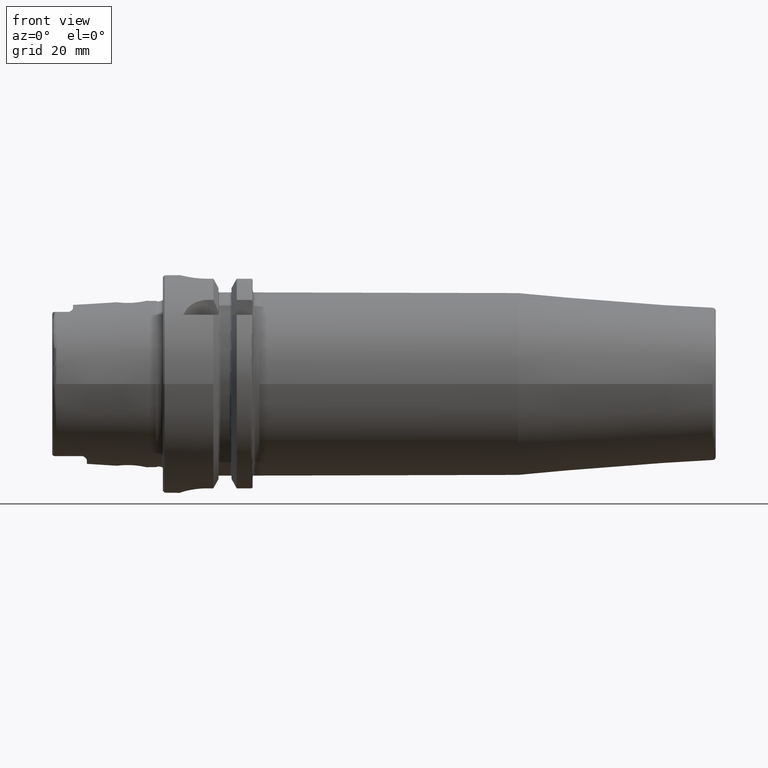
[diagram: clean part render]
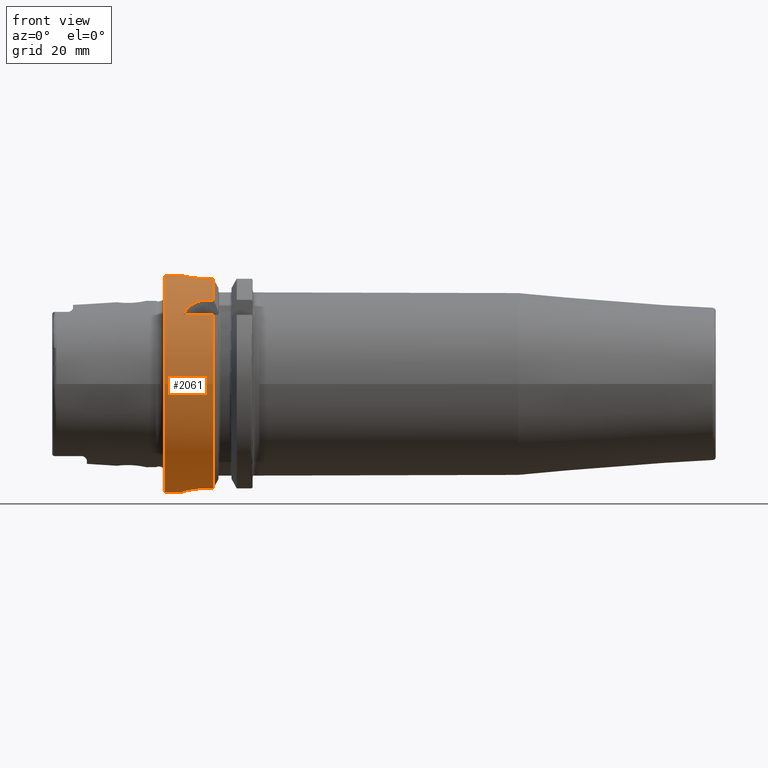
[diagram: same view with one face highlighted and labeled with its STEP entity id]
A machine part, front view. The second image highlights one B-rep face of the part: STEP entity #2061.
In plain terms, the highlighted cylindrical surface (bore or boss wall) has radius 31.5 mm, axis along (1, 0, 0).
Its self-contained STEP definition (entity closure, byte-faithful):
#75=B_SPLINE_CURVE_WITH_KNOTS('',3,(#3836,#3837,#3838,#3839,#3840,#3841,
#3842,#3843,#3844,#3845,#3846,#3847,#3848,#3849,#3850,#3851,#3852,#3853,
#3854,#3855,#3856,#3857,#3858,#3859,#3860,#3861),.UNSPECIFIED.,.F.,.F.,
(4,2,2,2,2,2,2,2,2,2,2,2,4),(0.,0.188688694287612,0.377377388575223,0.56606194688798,
0.754746505200737,0.943431063513494,1.13211562182625,1.32080431611386,1.50949301040147,
1.69818170468909,1.8868703989767,2.07555495728945,2.26423951560221),
 .UNSPECIFIED.);
#76=B_SPLINE_CURVE_WITH_KNOTS('',3,(#3862,#3863,#3864,#3865,#3866,#3867,
#3868,#3869,#3870,#3871),.UNSPECIFIED.,.F.,.F.,(4,2,2,2,4),(2.26423951560221,
2.45292407391497,2.64160863222773,2.83029732651534,3.01898602080295),
 .UNSPECIFIED.);
#79=B_SPLINE_CURVE_WITH_KNOTS('',3,(#3928,#3929,#3930,#3931,#3932,#3933,
#3934,#3935,#3936,#3937,#3938,#3939),.UNSPECIFIED.,.F.,.F.,(4,2,2,2,2,4),
(1.1085154204615,1.31979218709236,1.52798350480179,1.73617482251122,1.90421770126337,
2.07226058001552),.UNSPECIFIED.);
#89=B_SPLINE_CURVE_WITH_KNOTS('',3,(#4108,#4109,#4110,#4111,#4112,#4113,
#4114,#4115,#4116,#4117),.UNSPECIFIED.,.F.,.F.,(4,2,2,2,4),(1.20927420824097,
1.5131742975437,1.81707438684643,2.12000449915965,2.42293461147287),
 .UNSPECIFIED.);
#92=B_SPLINE_CURVE_WITH_KNOTS('',3,(#4143,#4144,#4145,#4146,#4147,#4148,
#4149,#4150,#4151,#4152),.UNSPECIFIED.,.F.,.F.,(4,2,2,2,4),(0.,0.30293011231322,
0.605860224626439,0.90976031392917,1.2136604032319),.UNSPECIFIED.);
#102=B_SPLINE_CURVE_WITH_KNOTS('',3,(#4298,#4299,#4300,#4301,#4302,#4303,
#4304,#4305,#4306,#4307,#4308,#4309,#4310,#4311,#4312,#4313,#4314,#4315),
 .UNSPECIFIED.,.F.,.F.,(4,2,2,2,2,2,2,2,4),(0.,0.302805879979318,0.605611759958635,
0.908372461246501,1.21113316253437,1.51389386382223,1.8166545651101,2.11946044508942,
2.42226632506874),.UNSPECIFIED.);
#112=FACE_BOUND('',#422,.T.);
#207=CYLINDRICAL_SURFACE('',#2288,31.5);
#297=FACE_OUTER_BOUND('',#421,.T.);
#421=EDGE_LOOP('',(#1764,#1765,#1766,#1767,#1768,#1769,#1770,#1771,#1772,
#1773,#1774,#1775,#1776,#1777,#1778,#1779,#1780,#1781));
#422=EDGE_LOOP('',(#1782,#1783));
#514=LINE('',#3903,#618);
#519=LINE('',#3948,#623);
#537=LINE('',#4125,#641);
#538=LINE('',#4129,#642);
#550=LINE('',#4292,#654);
#553=LINE('',#4322,#657);
#555=LINE('',#4328,#659);
#618=VECTOR('',#2621,10.);
#623=VECTOR('',#2632,10.);
#641=VECTOR('',#2696,10.);
#642=VECTOR('',#2699,10.);
#654=VECTOR('',#2777,10.);
#657=VECTOR('',#2788,10.);
#659=VECTOR('',#2796,31.5);
#730=CIRCLE('',#2231,31.5);
#731=CIRCLE('',#2232,31.5);
#739=CIRCLE('',#2252,31.5);
#740=CIRCLE('',#2254,31.5);
#754=CIRCLE('',#2289,31.5);
#755=CIRCLE('',#2290,31.5);
#904=VERTEX_POINT('',#3833);
#905=VERTEX_POINT('',#3835);
#913=VERTEX_POINT('',#3900);
#914=VERTEX_POINT('',#3902);
#918=VERTEX_POINT('',#3927);
#920=VERTEX_POINT('',#3944);
#925=VERTEX_POINT('',#3960);
#926=VERTEX_POINT('',#3962);
#951=VERTEX_POINT('',#4106);
#952=VERTEX_POINT('',#4107);
#953=VERTEX_POINT('',#4127);
#954=VERTEX_POINT('',#4128);
#957=VERTEX_POINT('',#4142);
#958=VERTEX_POINT('',#4157);
#974=VERTEX_POINT('',#4289);
#975=VERTEX_POINT('',#4291);
#976=VERTEX_POINT('',#4297);
#978=VERTEX_POINT('',#4327);
#1147=EDGE_CURVE('',#905,#904,#75,.T.);
#1148=EDGE_CURVE('',#904,#905,#76,.T.);
#1157=EDGE_CURVE('',#914,#913,#514,.T.);
#1163=EDGE_CURVE('',#913,#918,#79,.T.);
#1167=EDGE_CURVE('',#918,#920,#519,.T.);
#1173=EDGE_CURVE('',#914,#925,#730,.T.);
#1174=EDGE_CURVE('',#925,#926,#731,.T.);
#1208=EDGE_CURVE('',#951,#952,#89,.T.);
#1212=EDGE_CURVE('',#952,#926,#537,.T.);
#1213=EDGE_CURVE('',#953,#954,#538,.T.);
#1218=EDGE_CURVE('',#954,#957,#92,.T.);
#1220=EDGE_CURVE('',#957,#951,#739,.T.);
#1221=EDGE_CURVE('',#953,#958,#740,.T.);
#1253=EDGE_CURVE('',#975,#974,#550,.T.);
#1255=EDGE_CURVE('',#974,#976,#102,.T.);
#1259=EDGE_CURVE('',#976,#958,#553,.T.);
#1261=EDGE_CURVE('',#975,#920,#754,.T.);
#1262=EDGE_CURVE('',#925,#978,#555,.T.);
#1263=EDGE_CURVE('',#978,#978,#755,.T.);
#1764=ORIENTED_EDGE('',*,*,#1167,.T.);
#1765=ORIENTED_EDGE('',*,*,#1261,.F.);
#1766=ORIENTED_EDGE('',*,*,#1253,.T.);
#1767=ORIENTED_EDGE('',*,*,#1255,.T.);
#1768=ORIENTED_EDGE('',*,*,#1259,.T.);
#1769=ORIENTED_EDGE('',*,*,#1221,.F.);
#1770=ORIENTED_EDGE('',*,*,#1213,.T.);
#1771=ORIENTED_EDGE('',*,*,#1218,.T.);
#1772=ORIENTED_EDGE('',*,*,#1220,.T.);
#1773=ORIENTED_EDGE('',*,*,#1208,.T.);
#1774=ORIENTED_EDGE('',*,*,#1212,.T.);
#1775=ORIENTED_EDGE('',*,*,#1174,.F.);
#1776=ORIENTED_EDGE('',*,*,#1262,.T.);
#1777=ORIENTED_EDGE('',*,*,#1263,.T.);
#1778=ORIENTED_EDGE('',*,*,#1262,.F.);
#1779=ORIENTED_EDGE('',*,*,#1173,.F.);
#1780=ORIENTED_EDGE('',*,*,#1157,.T.);
#1781=ORIENTED_EDGE('',*,*,#1163,.T.);
#1782=ORIENTED_EDGE('',*,*,#1147,.T.);
#1783=ORIENTED_EDGE('',*,*,#1148,.T.);
#2061=ADVANCED_FACE('',(#297,#112),#207,.T.);
#2231=AXIS2_PLACEMENT_3D('',#3961,#2645,#2646);
#2232=AXIS2_PLACEMENT_3D('',#3963,#2647,#2648);
#2252=AXIS2_PLACEMENT_3D('',#4155,#2707,#2708);
#2254=AXIS2_PLACEMENT_3D('',#4158,#2711,#2712);
#2288=AXIS2_PLACEMENT_3D('',#4325,#2792,#2793);
#2289=AXIS2_PLACEMENT_3D('',#4326,#2794,#2795);
#2290=AXIS2_PLACEMENT_3D('',#4329,#2797,#2798);
#2621=DIRECTION('',(-1.,0.,0.));
#2632=DIRECTION('',(1.,0.,0.));
#2645=DIRECTION('center_axis',(1.,0.,0.));
#2646=DIRECTION('ref_axis',(0.,0.,-1.));
#2647=DIRECTION('center_axis',(1.,0.,0.));
#2648=DIRECTION('ref_axis',(0.,0.,-1.));
#2696=DIRECTION('',(1.,0.,0.));
#2699=DIRECTION('',(-1.,0.,0.));
#2707=DIRECTION('center_axis',(-1.,0.,0.));
#2708=DIRECTION('ref_axis',(0.,1.,0.));
#2711=DIRECTION('center_axis',(1.,0.,0.));
#2712=DIRECTION('ref_axis',(0.,0.,-1.));
#2777=DIRECTION('',(-1.,0.,0.));
#2788=DIRECTION('',(1.,0.,0.));
#2792=DIRECTION('center_axis',(1.,0.,0.));
#2793=DIRECTION('ref_axis',(0.,1.,0.));
#2794=DIRECTION('center_axis',(1.,0.,0.));
#2795=DIRECTION('ref_axis',(0.,0.,-1.));
#2796=DIRECTION('',(-1.,0.,0.));
#2797=DIRECTION('center_axis',(1.,0.,0.));
#2798=DIRECTION('ref_axis',(0.,0.,-1.));
#3833=CARTESIAN_POINT('',(12.,31.5,-6.12323399573677E-16));
#3835=CARTESIAN_POINT('',(7.,31.100643080168,5.));
#3836=CARTESIAN_POINT('Ctrl Pts',(7.,31.100643080168,5.));
#3837=CARTESIAN_POINT('Ctrl Pts',(6.37103768570796,31.100643080168,5.));
#3838=CARTESIAN_POINT('Ctrl Pts',(5.70089281579202,31.1216953112949,4.87408354368814));
#3839=CARTESIAN_POINT('Ctrl Pts',(4.46931934300962,31.1973810209855,4.36348784122736));
#3840=CARTESIAN_POINT('Ctrl Pts',(3.90779781350673,31.2508828501623,3.97886562537221));
#3841=CARTESIAN_POINT('Ctrl Pts',(3.021144092268,31.3510329557602,3.09221190413348));
#3842=CARTESIAN_POINT('Ctrl Pts',(2.63651425348544,31.4042391414288,2.5306861925578));
#3843=CARTESIAN_POINT('Ctrl Pts',(2.12591301120586,31.4792463697936,1.29909839144709));
#3844=CARTESIAN_POINT('Ctrl Pts',(2.,31.5,0.62894852770919));
#3845=CARTESIAN_POINT('Ctrl Pts',(2.,31.5,-0.62894852770919));
#3846=CARTESIAN_POINT('Ctrl Pts',(2.12591301120586,31.4792463697936,-1.29909839144709));
#3847=CARTESIAN_POINT('Ctrl Pts',(2.63651425348544,31.4042391414288,-2.5306861925578));
#3848=CARTESIAN_POINT('Ctrl Pts',(3.021144092268,31.3510329557602,-3.09221190413348));
#3849=CARTESIAN_POINT('Ctrl Pts',(3.90779781350673,31.2508828501623,-3.97886562537221));
#3850=CARTESIAN_POINT('Ctrl Pts',(4.46931934300962,31.1973810209855,-4.36348784122736));
#3851=CARTESIAN_POINT('Ctrl Pts',(5.70089281579202,31.1216953112949,-4.87408354368814));
#3852=CARTESIAN_POINT('Ctrl Pts',(6.37103768570796,31.100643080168,-5.));
#3853=CARTESIAN_POINT('Ctrl Pts',(7.62896231429204,31.100643080168,-5.));
#3854=CARTESIAN_POINT('Ctrl Pts',(8.29910718420798,31.1216953112949,-4.87408354368814));
#3855=CARTESIAN_POINT('Ctrl Pts',(9.53068065699038,31.1973810209855,-4.36348784122736));
#3856=CARTESIAN_POINT('Ctrl Pts',(10.0922021864933,31.2508828501623,-3.97886562537221));
#3857=CARTESIAN_POINT('Ctrl Pts',(10.978855907732,31.3510329557602,-3.09221190413348));
#3858=CARTESIAN_POINT('Ctrl Pts',(11.3634857465146,31.4042391414288,-2.53068619255779));
#3859=CARTESIAN_POINT('Ctrl Pts',(11.8740869887941,31.4792463697936,-1.29909839144708));
#3860=CARTESIAN_POINT('Ctrl Pts',(12.,31.5,-0.62894852770919));
#3861=CARTESIAN_POINT('Ctrl Pts',(12.,31.5,-4.16333634234434E-16));
#3862=CARTESIAN_POINT('Ctrl Pts',(12.,31.5,-1.11022302462516E-15));
#3863=CARTESIAN_POINT('Ctrl Pts',(12.,31.5,0.628948527709188));
#3864=CARTESIAN_POINT('Ctrl Pts',(11.8740869887941,31.4792463697936,1.29909839144708));
#3865=CARTESIAN_POINT('Ctrl Pts',(11.3634857465146,31.4042391414288,2.53068619255779));
#3866=CARTESIAN_POINT('Ctrl Pts',(10.978855907732,31.3510329557602,3.09221190413348));
#3867=CARTESIAN_POINT('Ctrl Pts',(10.0922021864933,31.2508828501623,3.97886562537221));
#3868=CARTESIAN_POINT('Ctrl Pts',(9.53068065699038,31.1973810209855,4.36348784122736));
#3869=CARTESIAN_POINT('Ctrl Pts',(8.29910718420798,31.1216953112949,4.87408354368814));
#3870=CARTESIAN_POINT('Ctrl Pts',(7.62896231429204,31.100643080168,5.));
#3871=CARTESIAN_POINT('Ctrl Pts',(7.,31.100643080168,5.));
#3900=CARTESIAN_POINT('',(5.88828609634419,-24.3361870472759,20.));
#3902=CARTESIAN_POINT('',(14.6225009252407,-24.3361870472759,20.));
#3903=CARTESIAN_POINT('',(7.56125046262034,-24.3361870472759,20.));
#3927=CARTESIAN_POINT('',(13.,-20.,24.3361870472759));
#3928=CARTESIAN_POINT('Ctrl Pts',(5.88828609634419,-24.3361870472759,20.));
#3929=CARTESIAN_POINT('Ctrl Pts',(6.11069532820048,-23.9044753723342,20.5253108035937));
#3930=CARTESIAN_POINT('Ctrl Pts',(6.38325999044306,-23.4713523250807,21.0173865932788));
#3931=CARTESIAN_POINT('Ctrl Pts',(7.044898076458,-22.6317364276543,21.9186738868096));
#3932=CARTESIAN_POINT('Ctrl Pts',(7.46714468561685,-22.1861072682036,22.3682920878559));
#3933=CARTESIAN_POINT('Ctrl Pts',(8.46725531403812,-21.3767026700071,23.143042657319));
#3934=CARTESIAN_POINT('Ctrl Pts',(9.04646427720221,-21.0147449478223,23.4683362269255));
#3935=CARTESIAN_POINT('Ctrl Pts',(10.1145001432702,-20.5200081116516,23.9011603796022));
#3936=CARTESIAN_POINT('Ctrl Pts',(10.670823971716,-20.3234249831704,24.0673462447194));
#3937=CARTESIAN_POINT('Ctrl Pts',(11.8334528721306,-20.063121855676,24.2847667849476));
#3938=CARTESIAN_POINT('Ctrl Pts',(12.4398570708262,-20.,24.3361870472759));
#3939=CARTESIAN_POINT('Ctrl Pts',(13.,-20.,24.3361870472759));
#3944=CARTESIAN_POINT('',(14.6225009252407,-20.,24.3361870472759));
#3948=CARTESIAN_POINT('',(7.56125046262035,-20.,24.3361870472759));
#3960=CARTESIAN_POINT('',(14.6225009252407,-31.5,-3.85763741731416E-15));
#3961=CARTESIAN_POINT('Origin',(14.6225009252407,0.,0.));
#3962=CARTESIAN_POINT('',(14.6225009252407,-9.,-30.1869176962472));
#3963=CARTESIAN_POINT('Origin',(14.6225009252407,0.,0.));
#4106=CARTESIAN_POINT('',(5.,-0.999999999999999,-31.4841229828623));
#4107=CARTESIAN_POINT('',(13.,-9.,-30.1869176962472));
#4108=CARTESIAN_POINT('Ctrl Pts',(5.,-0.999999999999997,-31.4841229828623));
#4109=CARTESIAN_POINT('Ctrl Pts',(5.,-2.01248971281587,-31.4519642432536));
#4110=CARTESIAN_POINT('Ctrl Pts',(5.2037733306458,-3.08756640398171,-31.3640631381934));
#4111=CARTESIAN_POINT('Ctrl Pts',(6.02370102555041,-5.05836608044729,-31.1070804719497));
#4112=CARTESIAN_POINT('Ctrl Pts',(6.63955745341061,-5.95454409907418,-30.9405445582004));
#4113=CARTESIAN_POINT('Ctrl Pts',(8.05472493283182,-7.36715009628369,-30.6348764237341));
#4114=CARTESIAN_POINT('Ctrl Pts',(8.9496642215883,-7.98063403850821,-30.4752177477269));
#4115=CARTESIAN_POINT('Ctrl Pts',(10.9171740660538,-8.79719825889174,-30.2496070227108));
#4116=CARTESIAN_POINT('Ctrl Pts',(11.9902329589559,-9.,-30.1869176962472));
#4117=CARTESIAN_POINT('Ctrl Pts',(13.,-9.,-30.1869176962472));
#4125=CARTESIAN_POINT('',(7.56125046262035,-8.99999999999999,-30.1869176962472));
#4127=CARTESIAN_POINT('',(14.6225009252407,9.,-30.1869176962472));
#4128=CARTESIAN_POINT('',(13.,9.00000000000001,-30.1869176962472));
#4129=CARTESIAN_POINT('',(7.56125046262034,9.00000000000001,-30.1869176962472));
#4142=CARTESIAN_POINT('',(5.,1.,-31.4841229828623));
#4143=CARTESIAN_POINT('Ctrl Pts',(13.,9.00000000000001,-30.1869176962472));
#4144=CARTESIAN_POINT('Ctrl Pts',(11.9902329589559,9.00000000000001,-30.1869176962472));
#4145=CARTESIAN_POINT('Ctrl Pts',(10.9171740660538,8.79719825889175,-30.2496070227108));
#4146=CARTESIAN_POINT('Ctrl Pts',(8.9496642215883,7.98063403850822,-30.4752177477269));
#4147=CARTESIAN_POINT('Ctrl Pts',(8.05472493283182,7.3671500962837,-30.6348764237341));
#4148=CARTESIAN_POINT('Ctrl Pts',(6.63955745341061,5.95454409907419,-30.9405445582004));
#4149=CARTESIAN_POINT('Ctrl Pts',(6.02370102555041,5.0583660804473,-31.1070804719497));
#4150=CARTESIAN_POINT('Ctrl Pts',(5.2037733306458,3.08756640398172,-31.3640631381934));
#4151=CARTESIAN_POINT('Ctrl Pts',(5.,2.01248971281588,-31.4519642432536));
#4152=CARTESIAN_POINT('Ctrl Pts',(5.,1.00000000000001,-31.4841229828623));
#4155=CARTESIAN_POINT('Origin',(5.,0.,0.));
#4157=CARTESIAN_POINT('',(14.6225009252407,8.,30.4671954731642));
#4158=CARTESIAN_POINT('Origin',(14.6225009252407,0.,0.));
#4289=CARTESIAN_POINT('',(13.,-8.,30.4671954731642));
#4291=CARTESIAN_POINT('',(14.6225009252407,-8.,30.4671954731642));
#4292=CARTESIAN_POINT('',(7.56125046262034,-8.,30.4671954731642));
#4297=CARTESIAN_POINT('',(13.,8.,30.4671954731642));
#4298=CARTESIAN_POINT('Ctrl Pts',(13.,-8.,30.4671954731643));
#4299=CARTESIAN_POINT('Ctrl Pts',(11.9906470667356,-8.,30.4671954731643));
#4300=CARTESIAN_POINT('Ctrl Pts',(10.9172075930168,-7.79737202490167,30.5225803085525));
#4301=CARTESIAN_POINT('Ctrl Pts',(8.94758399331801,-6.97961067526075,30.719895002943));
#4302=CARTESIAN_POINT('Ctrl Pts',(8.05099322370438,-6.36470172268915,30.8586830127239));
#4303=CARTESIAN_POINT('Ctrl Pts',(6.63540388828045,-4.94911238726521,31.1170994373341));
#4304=CARTESIAN_POINT('Ctrl Pts',(6.02041263015313,-4.05247770930662,31.2539072689014));
#4305=CARTESIAN_POINT('Ctrl Pts',(5.20259114887399,-2.08269813865027,31.4466478906396));
#4306=CARTESIAN_POINT('Ctrl Pts',(5.,-1.00920233762622,31.5));
#4307=CARTESIAN_POINT('Ctrl Pts',(5.,1.00920233762622,31.5));
#4308=CARTESIAN_POINT('Ctrl Pts',(5.20259114887399,2.08269813865027,31.4466478906396));
#4309=CARTESIAN_POINT('Ctrl Pts',(6.02041263015313,4.05247770930662,31.2539072689014));
#4310=CARTESIAN_POINT('Ctrl Pts',(6.63540388828045,4.94911238726521,31.1170994373341));
#4311=CARTESIAN_POINT('Ctrl Pts',(8.05099322370439,6.36470172268915,30.8586830127239));
#4312=CARTESIAN_POINT('Ctrl Pts',(8.94758399331801,6.97961067526075,30.719895002943));
#4313=CARTESIAN_POINT('Ctrl Pts',(10.9172075930168,7.79737202490167,30.5225803085525));
#4314=CARTESIAN_POINT('Ctrl Pts',(11.9906470667356,8.,30.4671954731643));
#4315=CARTESIAN_POINT('Ctrl Pts',(13.,8.,30.4671954731643));
#4322=CARTESIAN_POINT('',(7.56125046262035,8.,30.4671954731642));
#4325=CARTESIAN_POINT('Origin',(7.56125046262034,0.,0.));
#4326=CARTESIAN_POINT('Origin',(14.6225009252407,0.,0.));
#4327=CARTESIAN_POINT('',(0.5,-31.5,-3.85763741731416E-15));
#4328=CARTESIAN_POINT('',(7.56125046262034,-31.5,-3.85763741731416E-15));
#4329=CARTESIAN_POINT('Origin',(0.5,0.,0.));